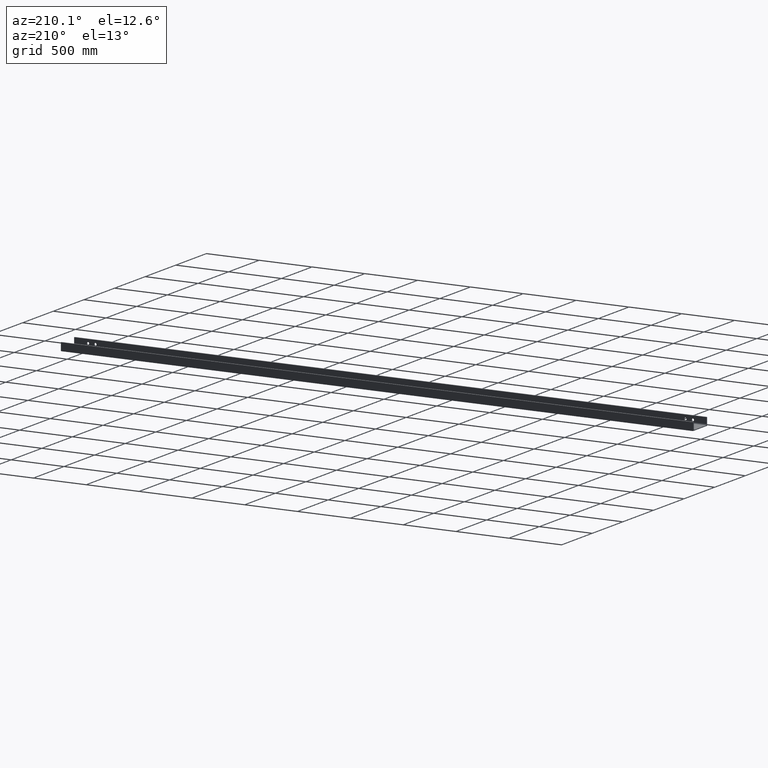
[diagram: clean part render]
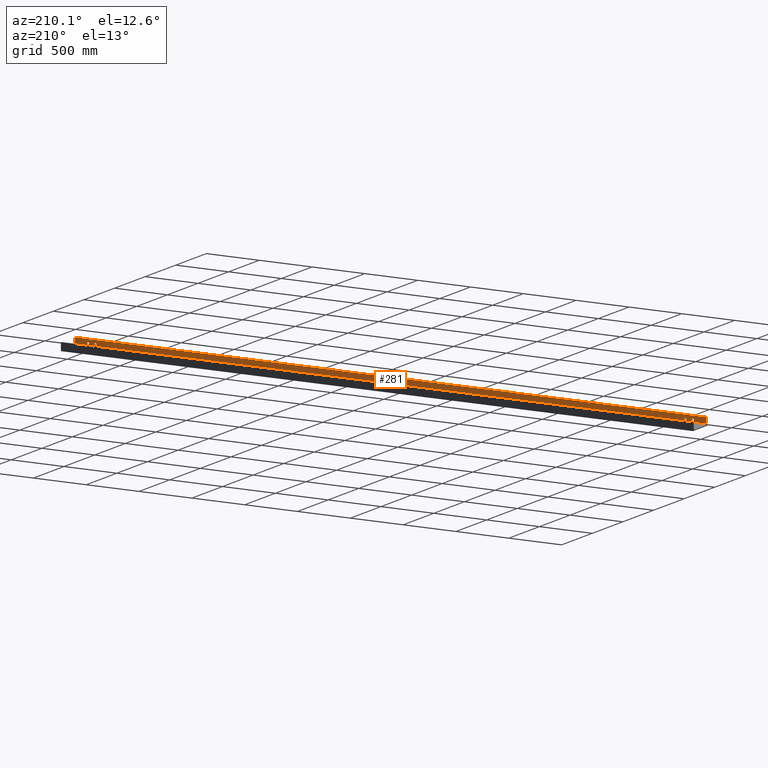
[diagram: same view with one face highlighted and labeled with its STEP entity id]
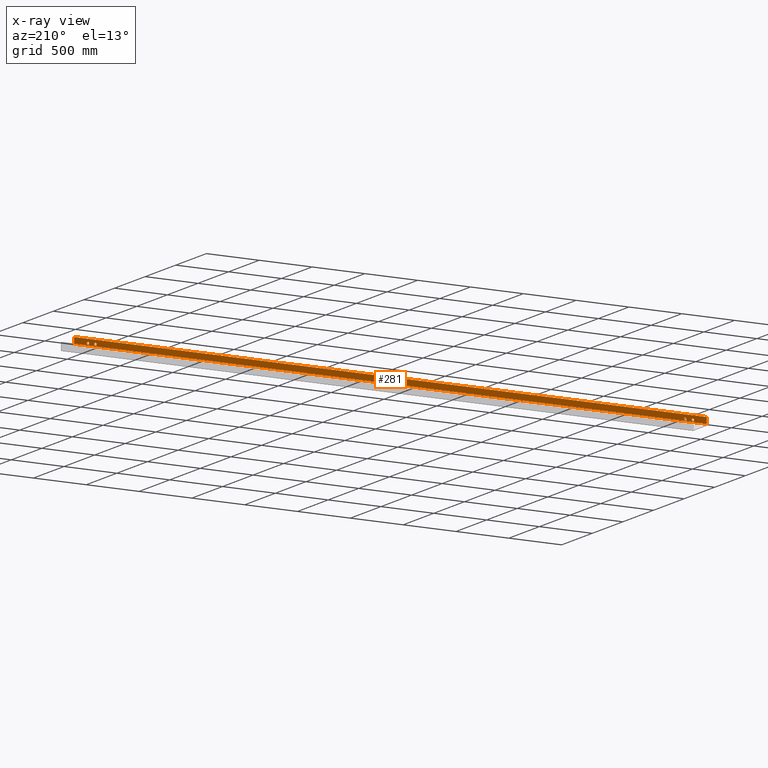
[diagram: x-ray of the same camera — body ghosted, the highlighted face saturated]
A machine part, auxiliary view. The second image highlights one B-rep face of the part: STEP entity #281.
The next image is the same camera in x-ray: the body ghosted, the highlighted face saturated — about 0% of this face is hidden behind the body in this view.
In plain terms, the highlighted planar face has unit normal (0, -1, 0).
Its self-contained STEP definition (entity closure, byte-faithful):
#4 = EDGE_CURVE ( 'NONE', #157, #161, #98, .T. ) ;
#5 = CIRCLE ( 'NONE', #424, 12.00000000000001066 ) ;
#8 = DIRECTION ( 'NONE',  ( 0.000000000000000000, -3.469446951953611033E-15, -1.000000000000000000 ) ) ;
#19 = AXIS2_PLACEMENT_3D ( 'NONE', #498, #265, #510 ) ;
#22 = ORIENTED_EDGE ( 'NONE', *, *, #506, .T. ) ;
#27 = ORIENTED_EDGE ( 'NONE', *, *, #154, .T. ) ;
#28 = LINE ( 'NONE', #731, #513 ) ;
#34 = EDGE_LOOP ( 'NONE', ( #132, #27 ) ) ;
#39 = CARTESIAN_POINT ( 'NONE',  ( -2992.500000000000000, -103.0000000000005826, 61.30000000000038085 ) ) ;
#44 = DIRECTION ( 'NONE',  ( 0.000000000000000000, -3.469446951953611033E-15, -1.000000000000000000 ) ) ;
#47 = CARTESIAN_POINT ( 'NONE',  ( -2862.500000000000455, -103.0000000000006253, 35.80000000000040217 ) ) ;
#55 = ORIENTED_EDGE ( 'NONE', *, *, #650, .T. ) ;
#61 = ORIENTED_EDGE ( 'NONE', *, *, #693, .T. ) ;
#74 = ORIENTED_EDGE ( 'NONE', *, *, #629, .F. ) ;
#78 = DIRECTION ( 'NONE',  ( 0.000000000000000000, -3.469446951953611033E-15, -1.000000000000000000 ) ) ;
#79 = ORIENTED_EDGE ( 'NONE', *, *, #606, .T. ) ;
#87 = DIRECTION ( 'NONE',  ( 1.000000000000000000, 3.061616997868382648E-16, -0.000000000000000000 ) ) ;
#94 = DIRECTION ( 'NONE',  ( 0.000000000000000000, -3.469446951953611033E-15, -1.000000000000000000 ) ) ;
#95 = EDGE_CURVE ( 'NONE', #695, #318, #495, .T. ) ;
#96 = CARTESIAN_POINT ( 'NONE',  ( -2862.500000000000455, -103.0000000000006537, 23.80000000000038796 ) ) ;
#98 = CIRCLE ( 'NONE', #662, 12.00000000000001066 ) ;
#99 = CARTESIAN_POINT ( 'NONE',  ( 2862.500000000000455, -102.9999999999988916, 23.80000000000038796 ) ) ;
#101 = CARTESIAN_POINT ( 'NONE',  ( -2992.500000000000000, -103.0000000000007532, 4.800000000000337330 ) ) ;
#105 = CARTESIAN_POINT ( 'NONE',  ( -2792.500000000000455, -103.0000000000006395, 23.80000000000037730 ) ) ;
#106 = DIRECTION ( 'NONE',  ( 3.061616997868382648E-16, -1.000000000000000000, 3.193119318612173803E-15 ) ) ;
#108 = ORIENTED_EDGE ( 'NONE', *, *, #253, .T. ) ;
#118 = DIRECTION ( 'NONE',  ( 0.000000000000000000, -3.469446951953611033E-15, -1.000000000000000000 ) ) ;
#132 = ORIENTED_EDGE ( 'NONE', *, *, #95, .T. ) ;
#139 = DIRECTION ( 'NONE',  ( 3.061616997868382648E-16, -1.000000000000000000, 3.193119318612173803E-15 ) ) ;
#154 = EDGE_CURVE ( 'NONE', #318, #695, #577, .T. ) ;
#157 = VERTEX_POINT ( 'NONE', #47 ) ;
#161 = VERTEX_POINT ( 'NONE', #277 ) ;
#162 = DIRECTION ( 'NONE',  ( 0.000000000000000000, -3.469446951953611033E-15, -1.000000000000000000 ) ) ;
#166 = EDGE_LOOP ( 'NONE', ( #369, #108 ) ) ;
#175 = AXIS2_PLACEMENT_3D ( 'NONE', #99, #106, #118 ) ;
#186 = EDGE_LOOP ( 'NONE', ( #22, #635 ) ) ;
#190 = CIRCLE ( 'NONE', #602, 12.00000000000001066 ) ;
#193 = DIRECTION ( 'NONE',  ( 3.061616997868382648E-16, -1.000000000000000000, 3.193119318612173803E-15 ) ) ;
#195 = ORIENTED_EDGE ( 'NONE', *, *, #586, .F. ) ;
#201 = CARTESIAN_POINT ( 'NONE',  ( -2862.500000000000455, -103.0000000000006537, 23.80000000000038796 ) ) ;
#215 = PLANE ( 'NONE',  #234 ) ;
#218 = CARTESIAN_POINT ( 'NONE',  ( 2792.500000000000455, -102.9999999999989626, 11.80000000000036664 ) ) ;
#229 = CARTESIAN_POINT ( 'NONE',  ( 2792.500000000000455, -102.9999999999989200, 23.80000000000037730 ) ) ;
#231 = VERTEX_POINT ( 'NONE', #417 ) ;
#234 = AXIS2_PLACEMENT_3D ( 'NONE', #333, #386, #428 ) ;
#235 = AXIS2_PLACEMENT_3D ( 'NONE', #229, #458, #8 ) ;
#246 = CIRCLE ( 'NONE', #19, 12.00000000000001066 ) ;
#248 = CIRCLE ( 'NONE', #235, 12.00000000000001066 ) ;
#253 = EDGE_CURVE ( 'NONE', #452, #683, #246, .T. ) ;
#254 = EDGE_LOOP ( 'NONE', ( #79, #545 ) ) ;
#257 = CIRCLE ( 'NONE', #271, 12.00000000000001066 ) ;
#260 = CARTESIAN_POINT ( 'NONE',  ( -2792.500000000000455, -103.0000000000006679, 11.80000000000036664 ) ) ;
#265 = DIRECTION ( 'NONE',  ( 3.061616997868382648E-16, -1.000000000000000000, 3.193119318612173803E-15 ) ) ;
#271 = AXIS2_PLACEMENT_3D ( 'NONE', #105, #505, #162 ) ;
#277 = CARTESIAN_POINT ( 'NONE',  ( -2862.500000000000455, -103.0000000000006963, 11.80000000000037552 ) ) ;
#281 = ADVANCED_FACE ( 'NONE', ( #434, #554, #729, #666, #610 ), #215, .F. ) ;
#300 = CARTESIAN_POINT ( 'NONE',  ( -2792.500000000000455, -103.0000000000006395, 23.80000000000037730 ) ) ;
#317 = CARTESIAN_POINT ( 'NONE',  ( 2862.500000000000455, -102.9999999999989342, 11.80000000000037552 ) ) ;
#318 = VERTEX_POINT ( 'NONE', #541 ) ;
#326 = CARTESIAN_POINT ( 'NONE',  ( -2992.500000000000000, -103.0000000000007532, 4.800000000000337330 ) ) ;
#333 = CARTESIAN_POINT ( 'NONE',  ( -2992.500000000000000, -103.0000000000005826, 61.30000000000038085 ) ) ;
#335 = VERTEX_POINT ( 'NONE', #381 ) ;
#346 = EDGE_CURVE ( 'NONE', #335, #351, #257, .T. ) ;
#351 = VERTEX_POINT ( 'NONE', #260 ) ;
#354 = CARTESIAN_POINT ( 'NONE',  ( 2992.500000000000000, -102.9999999999987494, 61.30000000000038085 ) ) ;
#369 = ORIENTED_EDGE ( 'NONE', *, *, #389, .T. ) ;
#370 = DIRECTION ( 'NONE',  ( 3.061616997868382648E-16, -1.000000000000000000, 3.193119318612173803E-15 ) ) ;
#379 = LINE ( 'NONE', #101, #469 ) ;
#381 = CARTESIAN_POINT ( 'NONE',  ( -2792.500000000000455, -103.0000000000005969, 35.80000000000038796 ) ) ;
#386 = DIRECTION ( 'NONE',  ( 3.061616997868382648E-16, -1.000000000000000000, 3.193119318612173803E-15 ) ) ;
#389 = EDGE_CURVE ( 'NONE', #683, #452, #248, .T. ) ;
#417 = CARTESIAN_POINT ( 'NONE',  ( 2992.500000000000000, -102.9999999999989200, 4.800000000000337330 ) ) ;
#424 = AXIS2_PLACEMENT_3D ( 'NONE', #300, #193, #78 ) ;
#428 = DIRECTION ( 'NONE',  ( 0.000000000000000000, -3.193119318612173803E-15, -1.000000000000000000 ) ) ;
#430 = DIRECTION ( 'NONE',  ( 0.000000000000000000, -3.193119318612173803E-15, -1.000000000000000000 ) ) ;
#434 = FACE_BOUND ( 'NONE', #254, .T. ) ;
#448 = VECTOR ( 'NONE', #722, 1000.000000000000000 ) ;
#449 = VECTOR ( 'NONE', #87, 1000.000000000000000 ) ;
#452 = VERTEX_POINT ( 'NONE', #454 ) ;
#454 = CARTESIAN_POINT ( 'NONE',  ( 2792.500000000000455, -102.9999999999988773, 35.80000000000038796 ) ) ;
#458 = DIRECTION ( 'NONE',  ( 3.061616997868382648E-16, -1.000000000000000000, 3.193119318612173803E-15 ) ) ;
#469 = VECTOR ( 'NONE', #551, 1000.000000000000000 ) ;
#475 = VERTEX_POINT ( 'NONE', #354 ) ;
#495 = CIRCLE ( 'NONE', #175, 12.00000000000001066 ) ;
#498 = CARTESIAN_POINT ( 'NONE',  ( 2792.500000000000455, -102.9999999999989200, 23.80000000000037730 ) ) ;
#505 = DIRECTION ( 'NONE',  ( 3.061616997868382648E-16, -1.000000000000000000, 3.193119318612173803E-15 ) ) ;
#506 = EDGE_CURVE ( 'NONE', #351, #335, #5, .T. ) ;
#510 = DIRECTION ( 'NONE',  ( 0.000000000000000000, -3.469446951953611033E-15, -1.000000000000000000 ) ) ;
#513 = VECTOR ( 'NONE', #430, 1000.000000000000000 ) ;
#541 = CARTESIAN_POINT ( 'NONE',  ( 2862.500000000000455, -102.9999999999988631, 35.80000000000040217 ) ) ;
#545 = ORIENTED_EDGE ( 'NONE', *, *, #4, .T. ) ;
#547 = LINE ( 'NONE', #39, #448 ) ;
#550 = EDGE_LOOP ( 'NONE', ( #55, #74, #195, #61 ) ) ;
#551 = DIRECTION ( 'NONE',  ( 1.000000000000000000, 3.061616997868382648E-16, -0.000000000000000000 ) ) ;
#554 = FACE_BOUND ( 'NONE', #186, .T. ) ;
#557 = CARTESIAN_POINT ( 'NONE',  ( -2992.500000000000000, -103.0000000000005826, 61.30000000000038085 ) ) ;
#577 = CIRCLE ( 'NONE', #599, 12.00000000000001066 ) ;
#586 = EDGE_CURVE ( 'NONE', #707, #590, #547, .T. ) ;
#590 = VERTEX_POINT ( 'NONE', #326 ) ;
#599 = AXIS2_PLACEMENT_3D ( 'NONE', #619, #734, #630 ) ;
#601 = LINE ( 'NONE', #659, #449 ) ;
#602 = AXIS2_PLACEMENT_3D ( 'NONE', #96, #370, #44 ) ;
#606 = EDGE_CURVE ( 'NONE', #161, #157, #190, .T. ) ;
#610 = FACE_OUTER_BOUND ( 'NONE', #550, .T. ) ;
#619 = CARTESIAN_POINT ( 'NONE',  ( 2862.500000000000455, -102.9999999999988916, 23.80000000000038796 ) ) ;
#629 = EDGE_CURVE ( 'NONE', #590, #231, #379, .T. ) ;
#630 = DIRECTION ( 'NONE',  ( 0.000000000000000000, -3.469446951953611033E-15, -1.000000000000000000 ) ) ;
#635 = ORIENTED_EDGE ( 'NONE', *, *, #346, .T. ) ;
#650 = EDGE_CURVE ( 'NONE', #475, #231, #28, .T. ) ;
#659 = CARTESIAN_POINT ( 'NONE',  ( -2992.500000000000000, -103.0000000000005826, 61.30000000000038085 ) ) ;
#662 = AXIS2_PLACEMENT_3D ( 'NONE', #201, #139, #94 ) ;
#666 = FACE_BOUND ( 'NONE', #166, .T. ) ;
#683 = VERTEX_POINT ( 'NONE', #218 ) ;
#693 = EDGE_CURVE ( 'NONE', #707, #475, #601, .T. ) ;
#695 = VERTEX_POINT ( 'NONE', #317 ) ;
#707 = VERTEX_POINT ( 'NONE', #557 ) ;
#722 = DIRECTION ( 'NONE',  ( 0.000000000000000000, -3.193119318612173803E-15, -1.000000000000000000 ) ) ;
#729 = FACE_BOUND ( 'NONE', #34, .T. ) ;
#731 = CARTESIAN_POINT ( 'NONE',  ( 2992.500000000000000, -102.9999999999987494, 61.30000000000038085 ) ) ;
#734 = DIRECTION ( 'NONE',  ( 3.061616997868382648E-16, -1.000000000000000000, 3.193119318612173803E-15 ) ) ;